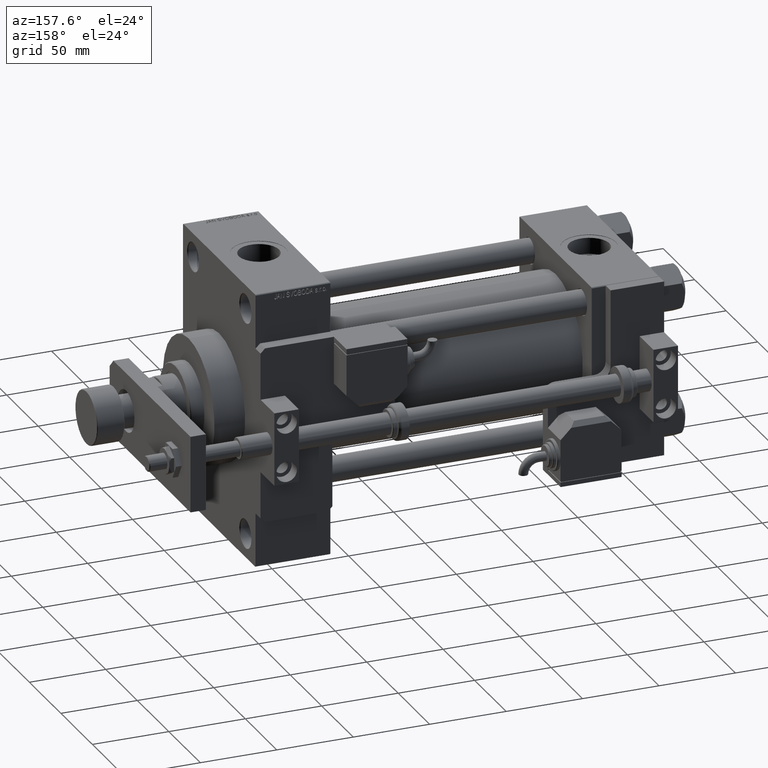
[diagram: clean part render]
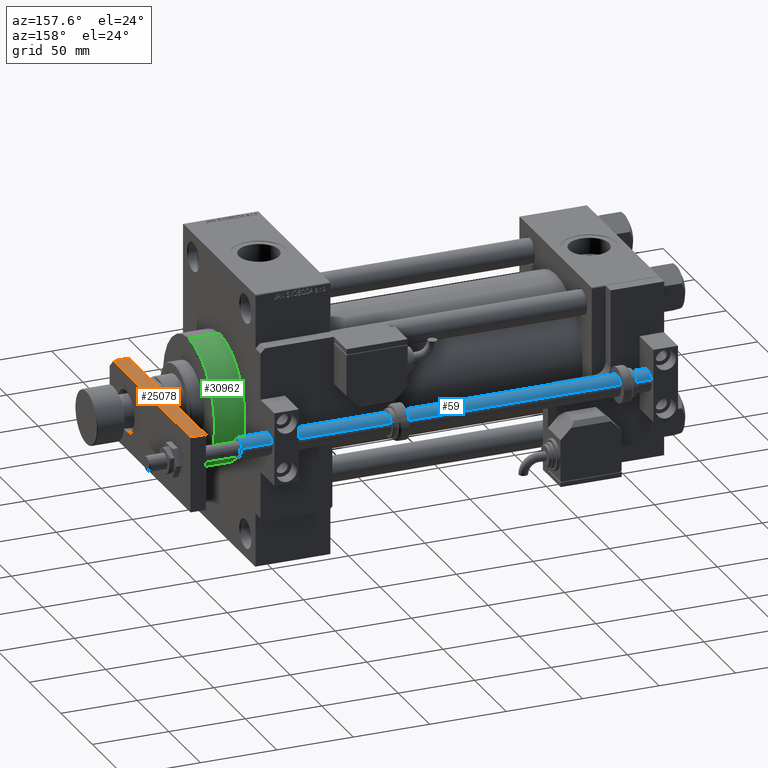
[diagram: same view with three faces highlighted in distinct colors, each labeled with its STEP entity id]
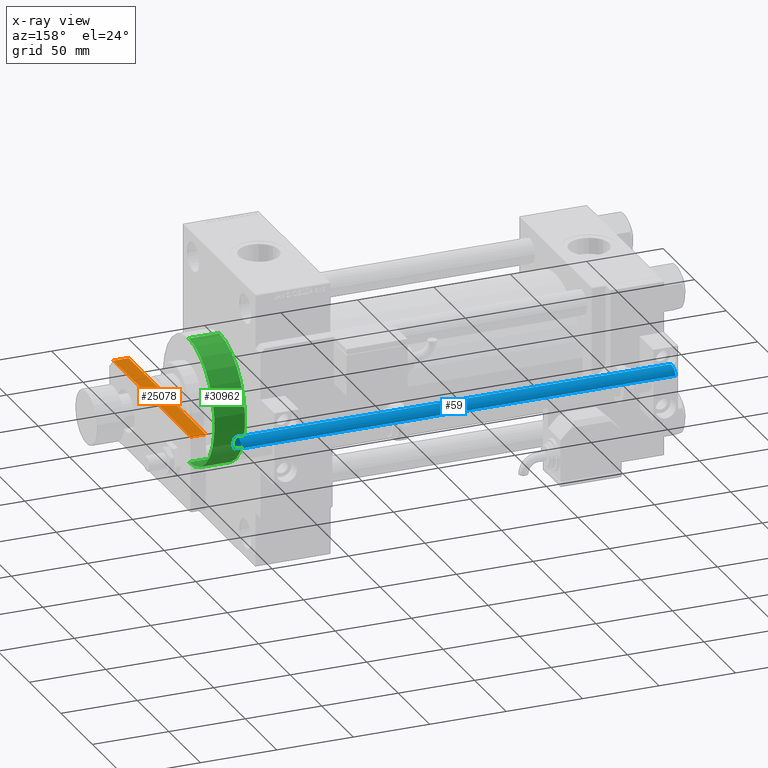
[diagram: x-ray of the same camera — body ghosted, the three highlighted faces saturated]
A machine part, auxiliary view with three faces highlighted in distinct colors.
The next image is the same camera in x-ray (body ghosted, the three faces saturated) — at least one of them is partly hidden behind the body in this view.
Their STEP definitions:

[orange] entity #25078 — the highlighted planar face has unit normal (-0, -0, -1).
#4524 = VECTOR ( 'NONE', #45901, 1000.000000000000000 ) ;
#5662 = AXIS2_PLACEMENT_3D ( 'NONE', #14556, #31672, #31136 ) ;
#5744 = CARTESIAN_POINT ( 'NONE',  ( 25.00000000000001421, 6.000000000000018652, 10.00000000000000000 ) ) ;
#7882 = EDGE_LOOP ( 'NONE', ( #52895, #17211, #25706, #36336 ) ) ;
#9278 = CARTESIAN_POINT ( 'NONE',  ( 25.00000000000001421, 0.000000000000000000, 10.00000000000000000 ) ) ;
#9876 = CARTESIAN_POINT ( 'NONE',  ( 25.00000000000001421, 0.000000000000000000, 0.000000000000000000 ) ) ;
#11146 = EDGE_CURVE ( 'NONE', #29778, #34295, #13972, .T. ) ;
#12462 = LINE ( 'NONE', #32830, #4524 ) ;
#13972 = LINE ( 'NONE', #9876, #47116 ) ;
#14556 = CARTESIAN_POINT ( 'NONE',  ( 25.00000000000001421, 0.000000000000000000, 10.00000000000000000 ) ) ;
#14945 = VERTEX_POINT ( 'NONE', #27969 ) ;
#15947 = CARTESIAN_POINT ( 'NONE',  ( 25.00000000000001421, 6.000000000000018652, 10.00000000000000000 ) ) ;
#17211 = ORIENTED_EDGE ( 'NONE', *, *, #41740, .T. ) ;
#17576 = EDGE_CURVE ( 'NONE', #31452, #14945, #47098, .T. ) ;
#25078 = ADVANCED_FACE ( 'NONE', ( #43918 ), #35218, .F. ) ;
#25706 = ORIENTED_EDGE ( 'NONE', *, *, #11146, .T. ) ;
#25882 = DIRECTION ( 'NONE',  ( -8.099876152420888730E-17, 1.000000000000000000, 0.000000000000000000 ) ) ;
#26465 = DIRECTION ( 'NONE',  ( -8.099876152420888730E-17, 1.000000000000000000, 0.000000000000000000 ) ) ;
#27969 = CARTESIAN_POINT ( 'NONE',  ( 25.00000000000000355, 128.5000000000000000, 10.00000000000000000 ) ) ;
#29778 = VERTEX_POINT ( 'NONE', #34613 ) ;
#31136 = DIRECTION ( 'NONE',  ( 8.099876152420888730E-17, -1.000000000000000000, 0.000000000000000000 ) ) ;
#31452 = VERTEX_POINT ( 'NONE', #15947 ) ;
#31672 = DIRECTION ( 'NONE',  ( -1.000000000000000000, -8.099876152420888730E-17, 0.000000000000000000 ) ) ;
#32830 = CARTESIAN_POINT ( 'NONE',  ( 25.00000000000000355, 128.5000000000000000, 10.00000000000000000 ) ) ;
#34295 = VERTEX_POINT ( 'NONE', #49345 ) ;
#34613 = CARTESIAN_POINT ( 'NONE',  ( 25.00000000000001421, 6.000000000000018652, 0.000000000000000000 ) ) ;
#34867 = DIRECTION ( 'NONE',  ( 0.000000000000000000, 0.000000000000000000, -1.000000000000000000 ) ) ;
#35218 = PLANE ( 'NONE',  #5662 ) ;
#36336 = ORIENTED_EDGE ( 'NONE', *, *, #47017, .F. ) ;
#41740 = EDGE_CURVE ( 'NONE', #31452, #29778, #51753, .T. ) ;
#42872 = VECTOR ( 'NONE', #25882, 1000.000000000000000 ) ;
#43918 = FACE_OUTER_BOUND ( 'NONE', #7882, .T. ) ;
#45901 = DIRECTION ( 'NONE',  ( -0.000000000000000000, -0.000000000000000000, -1.000000000000000000 ) ) ;
#47017 = EDGE_CURVE ( 'NONE', #14945, #34295, #12462, .T. ) ;
#47098 = LINE ( 'NONE', #9278, #42872 ) ;
#47116 = VECTOR ( 'NONE', #26465, 1000.000000000000000 ) ;
#49345 = CARTESIAN_POINT ( 'NONE',  ( 25.00000000000000355, 128.5000000000000000, 0.000000000000000000 ) ) ;
#49623 = VECTOR ( 'NONE', #34867, 1000.000000000000000 ) ;
#51753 = LINE ( 'NONE', #5744, #49623 ) ;
#52895 = ORIENTED_EDGE ( 'NONE', *, *, #17576, .F. ) ;

[blue] entity #59 — the highlighted cylindrical surface (edge-blend (fillet) strip) has radius 7 mm, axis along (1, -0, 0).
#59 = ADVANCED_FACE ( 'NONE', ( #31074 ), #27261, .T. ) ;
#314 = CIRCLE ( 'NONE', #14256, 7.000000000000000000 ) ;
#4861 = AXIS2_PLACEMENT_3D ( 'NONE', #35426, #47416, #47682 ) ;
#7380 = AXIS2_PLACEMENT_3D ( 'NONE', #34083, #33817, #9064 ) ;
#9064 = DIRECTION ( 'NONE',  ( 1.000000000000000000, 0.000000000000000000, 0.000000000000000000 ) ) ;
#10355 = DIRECTION ( 'NONE',  ( 0.000000000000000000, 0.000000000000000000, 1.000000000000000000 ) ) ;
#13184 = CARTESIAN_POINT ( 'NONE',  ( -7.000000000000000000, 0.000000000000000000, 284.0000000000000000 ) ) ;
#13505 = EDGE_CURVE ( 'NONE', #46620, #48406, #19520, .T. ) ;
#13928 = CARTESIAN_POINT ( 'NONE',  ( -7.000000000000000000, 0.000000000000000000, 284.0000000000000000 ) ) ;
#14032 = VECTOR ( 'NONE', #44560, 1000.000000000000000 ) ;
#14256 = AXIS2_PLACEMENT_3D ( 'NONE', #23389, #10355, #48440 ) ;
#17361 = VERTEX_POINT ( 'NONE', #38131 ) ;
#17387 = ORIENTED_EDGE ( 'NONE', *, *, #23953, .F. ) ;
#18393 = LINE ( 'NONE', #27089, #20394 ) ;
#19520 = LINE ( 'NONE', #13928, #14032 ) ;
#20394 = VECTOR ( 'NONE', #43689, 1000.000000000000000 ) ;
#22493 = EDGE_CURVE ( 'NONE', #46620, #17361, #314, .T. ) ;
#23389 = CARTESIAN_POINT ( 'NONE',  ( 0.000000000000000000, 0.000000000000000000, 284.0000000000000000 ) ) ;
#23924 = ORIENTED_EDGE ( 'NONE', *, *, #13505, .T. ) ;
#23953 = EDGE_CURVE ( 'NONE', #17361, #44300, #18393, .T. ) ;
#25253 = EDGE_CURVE ( 'NONE', #48406, #44300, #39551, .T. ) ;
#27089 = CARTESIAN_POINT ( 'NONE',  ( 7.000000000000000000, 8.572527594031473190E-16, 284.0000000000000000 ) ) ;
#27261 = CYLINDRICAL_SURFACE ( 'NONE', #4861, 7.000000000000000000 ) ;
#29586 = CARTESIAN_POINT ( 'NONE',  ( -7.000000000000000000, 0.000000000000000000, 0.2999999999999114486 ) ) ;
#29818 = CARTESIAN_POINT ( 'NONE',  ( 7.000000000000000000, 8.572527594031473190E-16, 0.2999999999999114486 ) ) ;
#31074 = FACE_OUTER_BOUND ( 'NONE', #49485, .T. ) ;
#33817 = DIRECTION ( 'NONE',  ( -0.000000000000000000, -0.000000000000000000, 1.000000000000000000 ) ) ;
#34083 = CARTESIAN_POINT ( 'NONE',  ( 0.000000000000000000, 0.000000000000000000, 0.2999999999999114486 ) ) ;
#35003 = ORIENTED_EDGE ( 'NONE', *, *, #22493, .F. ) ;
#35426 = CARTESIAN_POINT ( 'NONE',  ( 0.000000000000000000, 0.000000000000000000, 284.0000000000000000 ) ) ;
#36349 = ORIENTED_EDGE ( 'NONE', *, *, #25253, .T. ) ;
#38131 = CARTESIAN_POINT ( 'NONE',  ( 7.000000000000000000, 8.572527594031473190E-16, 284.0000000000000000 ) ) ;
#39551 = CIRCLE ( 'NONE', #7380, 7.000000000000000000 ) ;
#43689 = DIRECTION ( 'NONE',  ( -0.000000000000000000, -0.000000000000000000, -1.000000000000000000 ) ) ;
#44300 = VERTEX_POINT ( 'NONE', #29818 ) ;
#44560 = DIRECTION ( 'NONE',  ( -0.000000000000000000, -0.000000000000000000, -1.000000000000000000 ) ) ;
#46620 = VERTEX_POINT ( 'NONE', #13184 ) ;
#47416 = DIRECTION ( 'NONE',  ( -0.000000000000000000, -0.000000000000000000, -1.000000000000000000 ) ) ;
#47682 = DIRECTION ( 'NONE',  ( -1.000000000000000000, 0.000000000000000000, 0.000000000000000000 ) ) ;
#48406 = VERTEX_POINT ( 'NONE', #29586 ) ;
#48440 = DIRECTION ( 'NONE',  ( 1.000000000000000000, 0.000000000000000000, 0.000000000000000000 ) ) ;
#49485 = EDGE_LOOP ( 'NONE', ( #17387, #35003, #23924, #36349 ) ) ;

[green] entity #30962 — the highlighted cylindrical surface (partial cylindrical patch) has radius 41 mm, axis along (-1, -0, -0).
#1245 = CIRCLE ( 'NONE', #13449, 41.00000000000000000 ) ;
#1437 = CIRCLE ( 'NONE', #15369, 41.00000000000000000 ) ;
#1582 = DIRECTION ( 'NONE',  ( -1.000000000000000000, -0.000000000000000000, -0.000000000000000000 ) ) ;
#3645 = LINE ( 'NONE', #8273, #15839 ) ;
#4282 = CARTESIAN_POINT ( 'NONE',  ( 264.0000000000000000, 0.000000000000000000, 41.00000000000000000 ) ) ;
#6196 = CYLINDRICAL_SURFACE ( 'NONE', #43127, 41.00000000000000000 ) ;
#7288 = ORIENTED_EDGE ( 'NONE', *, *, #30364, .T. ) ;
#8273 = CARTESIAN_POINT ( 'NONE',  ( 284.0000000000000568, 0.000000000000000000, 41.00000000000000000 ) ) ;
#8738 = CARTESIAN_POINT ( 'NONE',  ( 264.0000000000000000, 5.021051876504148963E-15, -41.00000000000000000 ) ) ;
#13449 = AXIS2_PLACEMENT_3D ( 'NONE', #52068, #23462, #48513 ) ;
#13606 = CARTESIAN_POINT ( 'NONE',  ( 284.0000000000000568, 0.000000000000000000, 0.000000000000000000 ) ) ;
#15369 = AXIS2_PLACEMENT_3D ( 'NONE', #45434, #53624, #21471 ) ;
#15839 = VECTOR ( 'NONE', #24876, 1000.000000000000000 ) ;
#16686 = VERTEX_POINT ( 'NONE', #28549 ) ;
#17940 = VERTEX_POINT ( 'NONE', #19240 ) ;
#18504 = EDGE_CURVE ( 'NONE', #16686, #49367, #3645, .T. ) ;
#19211 = DIRECTION ( 'NONE',  ( -1.000000000000000000, -0.000000000000000000, -0.000000000000000000 ) ) ;
#19240 = CARTESIAN_POINT ( 'NONE',  ( 284.0000000000000568, 5.021051876504148963E-15, -41.00000000000000000 ) ) ;
#21471 = DIRECTION ( 'NONE',  ( 0.000000000000000000, 0.000000000000000000, -1.000000000000000000 ) ) ;
#23018 = LINE ( 'NONE', #31465, #36202 ) ;
#23085 = EDGE_CURVE ( 'NONE', #37109, #49367, #1245, .T. ) ;
#23462 = DIRECTION ( 'NONE',  ( 1.000000000000000000, 0.000000000000000000, 0.000000000000000000 ) ) ;
#24593 = ORIENTED_EDGE ( 'NONE', *, *, #18504, .F. ) ;
#24876 = DIRECTION ( 'NONE',  ( -1.000000000000000000, -0.000000000000000000, -0.000000000000000000 ) ) ;
#28219 = EDGE_CURVE ( 'NONE', #17940, #16686, #1437, .T. ) ;
#28549 = CARTESIAN_POINT ( 'NONE',  ( 284.0000000000000568, 0.000000000000000000, 41.00000000000000000 ) ) ;
#29863 = ORIENTED_EDGE ( 'NONE', *, *, #23085, .T. ) ;
#30364 = EDGE_CURVE ( 'NONE', #17940, #37109, #23018, .T. ) ;
#30962 = ADVANCED_FACE ( 'NONE', ( #39147 ), #6196, .T. ) ;
#31465 = CARTESIAN_POINT ( 'NONE',  ( 284.0000000000000568, 5.021051876504148963E-15, -41.00000000000000000 ) ) ;
#36202 = VECTOR ( 'NONE', #19211, 1000.000000000000000 ) ;
#37109 = VERTEX_POINT ( 'NONE', #8738 ) ;
#38355 = DIRECTION ( 'NONE',  ( 0.000000000000000000, 0.000000000000000000, 1.000000000000000000 ) ) ;
#39147 = FACE_OUTER_BOUND ( 'NONE', #49463, .T. ) ;
#43127 = AXIS2_PLACEMENT_3D ( 'NONE', #13606, #1582, #38355 ) ;
#45434 = CARTESIAN_POINT ( 'NONE',  ( 284.0000000000000568, 0.000000000000000000, 0.000000000000000000 ) ) ;
#47691 = ORIENTED_EDGE ( 'NONE', *, *, #28219, .F. ) ;
#48513 = DIRECTION ( 'NONE',  ( 0.000000000000000000, 0.000000000000000000, -1.000000000000000000 ) ) ;
#49367 = VERTEX_POINT ( 'NONE', #4282 ) ;
#49463 = EDGE_LOOP ( 'NONE', ( #47691, #7288, #29863, #24593 ) ) ;
#52068 = CARTESIAN_POINT ( 'NONE',  ( 264.0000000000000000, 0.000000000000000000, 0.000000000000000000 ) ) ;
#53624 = DIRECTION ( 'NONE',  ( 1.000000000000000000, 0.000000000000000000, 0.000000000000000000 ) ) ;